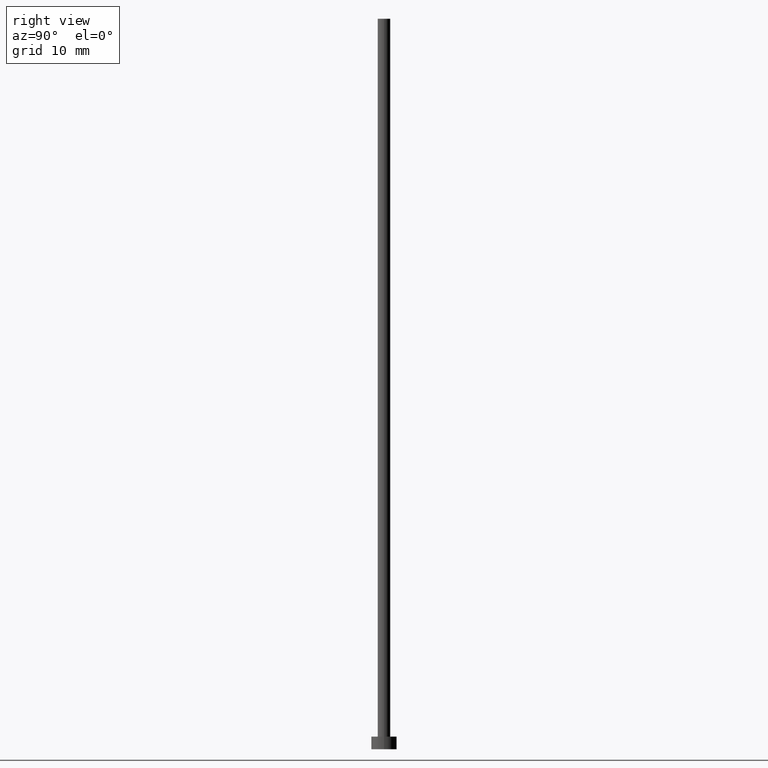
[diagram: clean part render]
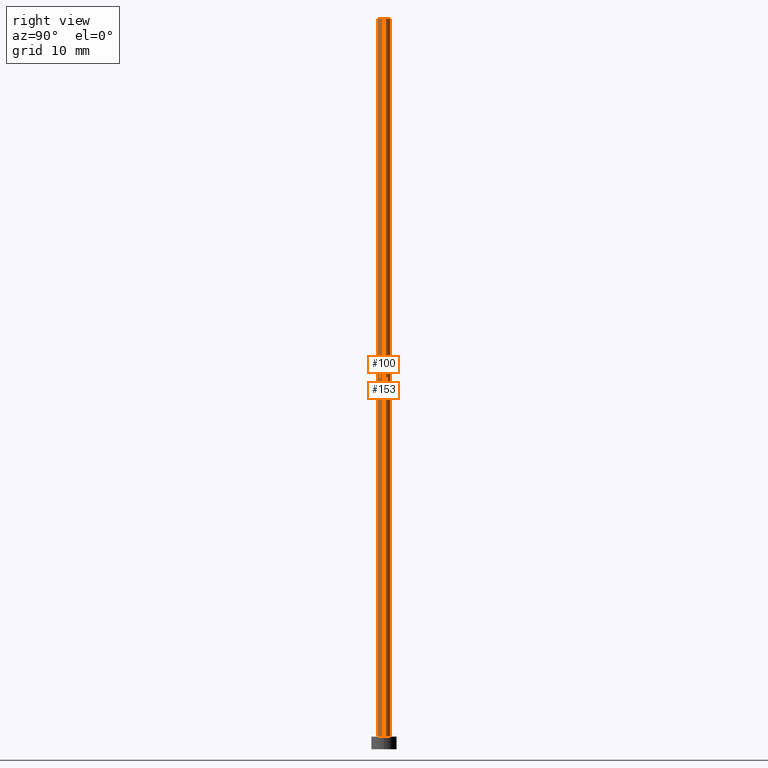
[diagram: same view with one multi-face feature highlighted, each face labeled with its STEP entity id]
A machine part, right view. The highlighted faces form ONE feature: a constant-radius fillet chain: 2 tangent blend faces with common blend radius 1 mm. The faces share edges in the B-rep.
Their STEP definitions:
[1] entity #153 (Cylinder):
#3 = LINE ( 'NONE', #217, #131 ) ;
#25 = EDGE_CURVE ( 'NONE', #195, #136, #159, .T. ) ;
#38 = EDGE_LOOP ( 'NONE', ( #180, #229, #179, #91 ) ) ;
#44 = CARTESIAN_POINT ( 'NONE',  ( 0.000000000000000000, 0.000000000000000000, 115.0000000000000000 ) ) ;
#62 = CARTESIAN_POINT ( 'NONE',  ( 1.000000000000000000, 1.224646799147353207E-16, 2.000000000000000000 ) ) ;
#63 = DIRECTION ( 'NONE',  ( 1.000000000000000000, 0.000000000000000000, 0.000000000000000000 ) ) ;
#78 = DIRECTION ( 'NONE',  ( -0.000000000000000000, -0.000000000000000000, -1.000000000000000000 ) ) ;
#83 = CARTESIAN_POINT ( 'NONE',  ( 1.000000000000000000, 1.224646799147353207E-16, 115.0000000000000000 ) ) ;
#84 = DIRECTION ( 'NONE',  ( 1.000000000000000000, 0.000000000000000000, 0.000000000000000000 ) ) ;
#88 = DIRECTION ( 'NONE',  ( 0.000000000000000000, 0.000000000000000000, 1.000000000000000000 ) ) ;
#91 = ORIENTED_EDGE ( 'NONE', *, *, #118, .F. ) ;
#95 = DIRECTION ( 'NONE',  ( -0.000000000000000000, -0.000000000000000000, -1.000000000000000000 ) ) ;
#98 = AXIS2_PLACEMENT_3D ( 'NONE', #141, #162, #63 ) ;
#101 = DIRECTION ( 'NONE',  ( -1.000000000000000000, 0.000000000000000000, 0.000000000000000000 ) ) ;
#106 = CARTESIAN_POINT ( 'NONE',  ( -1.000000000000000000, 0.000000000000000000, 2.000000000000000000 ) ) ;
#118 = EDGE_CURVE ( 'NONE', #152, #213, #3, .T. ) ;
#123 = CARTESIAN_POINT ( 'NONE',  ( 1.000000000000000000, 1.224646799147353207E-16, 115.0000000000000000 ) ) ;
#127 = AXIS2_PLACEMENT_3D ( 'NONE', #145, #88, #84 ) ;
#131 = VECTOR ( 'NONE', #181, 1000.000000000000000 ) ;
#136 = VERTEX_POINT ( 'NONE', #62 ) ;
#141 = CARTESIAN_POINT ( 'NONE',  ( 0.000000000000000000, 0.000000000000000000, 2.000000000000000000 ) ) ;
#145 = CARTESIAN_POINT ( 'NONE',  ( 0.000000000000000000, 0.000000000000000000, 115.0000000000000000 ) ) ;
#152 = VERTEX_POINT ( 'NONE', #239 ) ;
#153 = ADVANCED_FACE ( 'NONE', ( #220 ), #253, .T. ) ;
#159 = LINE ( 'NONE', #83, #176 ) ;
#162 = DIRECTION ( 'NONE',  ( 0.000000000000000000, 0.000000000000000000, 1.000000000000000000 ) ) ;
#176 = VECTOR ( 'NONE', #95, 1000.000000000000000 ) ;
#179 = ORIENTED_EDGE ( 'NONE', *, *, #194, .T. ) ;
#180 = ORIENTED_EDGE ( 'NONE', *, *, #248, .F. ) ;
#181 = DIRECTION ( 'NONE',  ( -0.000000000000000000, -0.000000000000000000, -1.000000000000000000 ) ) ;
#189 = CIRCLE ( 'NONE', #98, 1.000000000000000000 ) ;
#194 = EDGE_CURVE ( 'NONE', #136, #213, #189, .T. ) ;
#195 = VERTEX_POINT ( 'NONE', #123 ) ;
#202 = CIRCLE ( 'NONE', #127, 1.000000000000000000 ) ;
#213 = VERTEX_POINT ( 'NONE', #106 ) ;
#217 = CARTESIAN_POINT ( 'NONE',  ( -1.000000000000000000, 0.000000000000000000, 115.0000000000000000 ) ) ;
#220 = FACE_OUTER_BOUND ( 'NONE', #38, .T. ) ;
#229 = ORIENTED_EDGE ( 'NONE', *, *, #25, .T. ) ;
#236 = AXIS2_PLACEMENT_3D ( 'NONE', #44, #78, #101 ) ;
#239 = CARTESIAN_POINT ( 'NONE',  ( -1.000000000000000000, 0.000000000000000000, 115.0000000000000000 ) ) ;
#248 = EDGE_CURVE ( 'NONE', #195, #152, #202, .T. ) ;
#253 = CYLINDRICAL_SURFACE ( 'NONE', #236, 1.000000000000000000 ) ;
[2] entity #100 (Cylinder):
#3 = LINE ( 'NONE', #217, #131 ) ;
#18 = CARTESIAN_POINT ( 'NONE',  ( 0.000000000000000000, 0.000000000000000000, 115.0000000000000000 ) ) ;
#25 = EDGE_CURVE ( 'NONE', #195, #136, #159, .T. ) ;
#42 = DIRECTION ( 'NONE',  ( 1.000000000000000000, 0.000000000000000000, 0.000000000000000000 ) ) ;
#45 = CARTESIAN_POINT ( 'NONE',  ( 0.000000000000000000, 0.000000000000000000, 115.0000000000000000 ) ) ;
#49 = EDGE_CURVE ( 'NONE', #152, #195, #196, .T. ) ;
#61 = AXIS2_PLACEMENT_3D ( 'NONE', #64, #139, #233 ) ;
#62 = CARTESIAN_POINT ( 'NONE',  ( 1.000000000000000000, 1.224646799147353207E-16, 2.000000000000000000 ) ) ;
#64 = CARTESIAN_POINT ( 'NONE',  ( 0.000000000000000000, 0.000000000000000000, 2.000000000000000000 ) ) ;
#65 = EDGE_CURVE ( 'NONE', #213, #136, #200, .T. ) ;
#77 = AXIS2_PLACEMENT_3D ( 'NONE', #45, #203, #42 ) ;
#81 = FACE_OUTER_BOUND ( 'NONE', #90, .T. ) ;
#83 = CARTESIAN_POINT ( 'NONE',  ( 1.000000000000000000, 1.224646799147353207E-16, 115.0000000000000000 ) ) ;
#90 = EDGE_LOOP ( 'NONE', ( #231, #156, #245, #177 ) ) ;
#95 = DIRECTION ( 'NONE',  ( -0.000000000000000000, -0.000000000000000000, -1.000000000000000000 ) ) ;
#100 = ADVANCED_FACE ( 'NONE', ( #81 ), #205, .T. ) ;
#106 = CARTESIAN_POINT ( 'NONE',  ( -1.000000000000000000, 0.000000000000000000, 2.000000000000000000 ) ) ;
#118 = EDGE_CURVE ( 'NONE', #152, #213, #3, .T. ) ;
#119 = DIRECTION ( 'NONE',  ( -0.000000000000000000, -0.000000000000000000, -1.000000000000000000 ) ) ;
#123 = CARTESIAN_POINT ( 'NONE',  ( 1.000000000000000000, 1.224646799147353207E-16, 115.0000000000000000 ) ) ;
#131 = VECTOR ( 'NONE', #181, 1000.000000000000000 ) ;
#136 = VERTEX_POINT ( 'NONE', #62 ) ;
#139 = DIRECTION ( 'NONE',  ( 0.000000000000000000, 0.000000000000000000, 1.000000000000000000 ) ) ;
#152 = VERTEX_POINT ( 'NONE', #239 ) ;
#156 = ORIENTED_EDGE ( 'NONE', *, *, #49, .F. ) ;
#159 = LINE ( 'NONE', #83, #176 ) ;
#176 = VECTOR ( 'NONE', #95, 1000.000000000000000 ) ;
#177 = ORIENTED_EDGE ( 'NONE', *, *, #65, .T. ) ;
#181 = DIRECTION ( 'NONE',  ( -0.000000000000000000, -0.000000000000000000, -1.000000000000000000 ) ) ;
#195 = VERTEX_POINT ( 'NONE', #123 ) ;
#196 = CIRCLE ( 'NONE', #77, 1.000000000000000000 ) ;
#199 = DIRECTION ( 'NONE',  ( -1.000000000000000000, 0.000000000000000000, 0.000000000000000000 ) ) ;
#200 = CIRCLE ( 'NONE', #61, 1.000000000000000000 ) ;
#203 = DIRECTION ( 'NONE',  ( 0.000000000000000000, 0.000000000000000000, 1.000000000000000000 ) ) ;
#205 = CYLINDRICAL_SURFACE ( 'NONE', #247, 1.000000000000000000 ) ;
#213 = VERTEX_POINT ( 'NONE', #106 ) ;
#217 = CARTESIAN_POINT ( 'NONE',  ( -1.000000000000000000, 0.000000000000000000, 115.0000000000000000 ) ) ;
#231 = ORIENTED_EDGE ( 'NONE', *, *, #25, .F. ) ;
#233 = DIRECTION ( 'NONE',  ( 1.000000000000000000, 0.000000000000000000, 0.000000000000000000 ) ) ;
#239 = CARTESIAN_POINT ( 'NONE',  ( -1.000000000000000000, 0.000000000000000000, 115.0000000000000000 ) ) ;
#245 = ORIENTED_EDGE ( 'NONE', *, *, #118, .T. ) ;
#247 = AXIS2_PLACEMENT_3D ( 'NONE', #18, #119, #199 ) ;